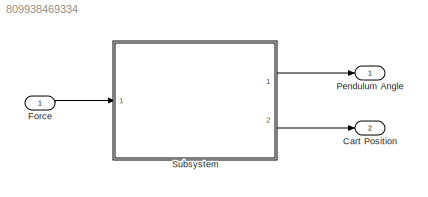
MODEL slx_809938469334
KIND model
CONFIG AbsTol = auto
CONFIG FixedStep = auto
CONFIG MaxStep = auto
CONFIG MinStep = auto
CONFIG RelTol = 1e-3
CONFIG SampleTimeConstraint = Unconstrained
CONFIG Solver = VariableStepAuto
CONFIG SolverMode = Auto
CONFIG SolverName = VariableStepAuto
CONFIG StartTime = 0.0
CONFIG StopTime = 10.0
BLOCK [Outport] Cart Position
  IconDisplay = Port number
  Port = 2
BLOCK [Inport] Force
  IconDisplay = Port number
BLOCK [Outport] Pendulum Angle
  IconDisplay = Port number
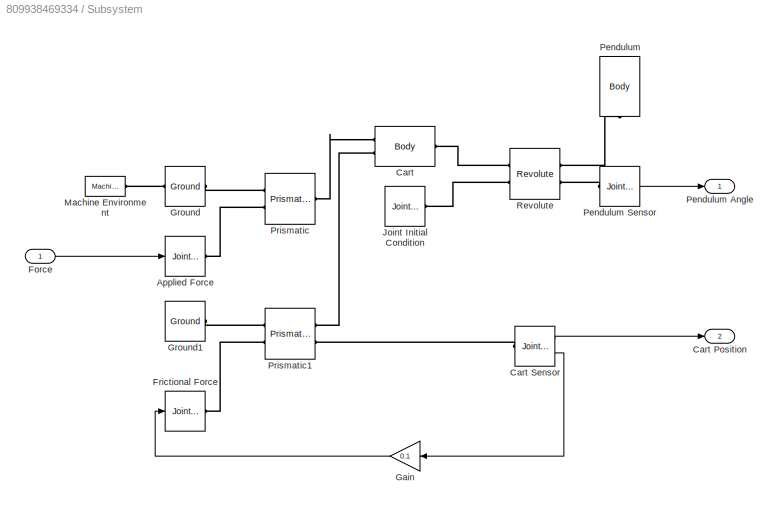
BLOCK [SubSystem] Subsystem
  Ports = [1, 2]
  RequestExecContextInheritance = off
  Variant = off
BLOCK [Reference] Subsystem/Applied Force  REF=mblibv1/Sensors & 
Actuators/Joint Actuator
  Ports = [1, 0, 0, 0, 0, 0, 1]
  SourceBlock = mblibv1/Sensors & \nActuators/Joint Actuator
  SourceType = Joint Actuator
BLOCK [Reference] Subsystem/Cart  REF=mblibv1/Bodies/Body
  Ports = [0, 0, 0, 0, 0, 2, 1]
  SourceBlock = mblibv1/Bodies/Body
  SourceType = Body
BLOCK [Outport] Subsystem/Cart Position
  IconDisplay = Port number
  Port = 2
BLOCK [Reference] Subsystem/Cart Sensor  REF=mblibv1/Sensors & 
Actuators/Joint Sensor
  Ports = [0, 2, 0, 0, 0, 1]
  SourceBlock = mblibv1/Sensors & \nActuators/Joint Sensor
  SourceType = Joint Sensor
BLOCK [Inport] Subsystem/Force
  IconDisplay = Port number
BLOCK [Reference] Subsystem/Frictional Force  REF=mblibv1/Sensors & 
Actuators/Joint Actuator
  Ports = [1, 0, 0, 0, 0, 0, 1]
  SourceBlock = mblibv1/Sensors & \nActuators/Joint Actuator
  SourceType = Joint Actuator
BLOCK [Gain] Subsystem/Gain
  Gain = 0.1
  OutDataTypeStr = Inherit: Inherit via internal rule
  ParamDataTypeStr = Inherit: Inherit via internal rule
  SaturateOnIntegerOverflow = off
BLOCK [Reference] Subsystem/Ground  REF=mblibv1/Bodies/Ground
  Ports = [0, 0, 0, 0, 0, 1, 1]
  SourceBlock = mblibv1/Bodies/Ground
  SourceType = Ground
  UserDataPersistent = on
BLOCK [Reference] Subsystem/Ground1  REF=mblibv1/Bodies/Ground
  Ports = [0, 0, 0, 0, 0, 0, 1]
  SourceBlock = mblibv1/Bodies/Ground
  SourceType = Ground
  UserDataPersistent = on
BLOCK [Reference] Subsystem/Joint Initial Condition  REF=mblibv1/Sensors & 
Actuators/Joint Initial Condition
  Ports = [0, 0, 0, 0, 0, 0, 1]
  SourceBlock = mblibv1/Sensors & \nActuators/Joint Initial Condition
  SourceType = Joint Initial Condition
BLOCK [Reference] Subsystem/Machine Environment  REF=mblibv1/Bodies/Machine
Environment
  Ports = [0, 0, 0, 0, 0, 0, 1]
  SourceBlock = mblibv1/Bodies/Machine\nEnvironment
  SourceType = Machine Environment
BLOCK [Reference] Subsystem/Pendulum  REF=mblibv1/Bodies/Body
  Ports = [0, 0, 0, 0, 0, 1]
  SourceBlock = mblibv1/Bodies/Body
  SourceType = Body
BLOCK [Outport] Subsystem/Pendulum Angle
  IconDisplay = Port number
BLOCK [Reference] Subsystem/Pendulum Sensor  REF=mblibv1/Sensors & 
Actuators/Joint Sensor
  Ports = [0, 1, 0, 0, 0, 1]
  SourceBlock = mblibv1/Sensors & \nActuators/Joint Sensor
  SourceType = Joint Sensor
BLOCK [Reference] Subsystem/Prismatic  REF=mblibv1/Joints/Prismatic
  Ports = [0, 0, 0, 0, 0, 2, 1]
  SourceBlock = mblibv1/Joints/Prismatic
  SourceType = Prismatic
BLOCK [Reference] Subsystem/Prismatic1  REF=mblibv1/Joints/Prismatic
  Ports = [0, 0, 0, 0, 0, 2, 2]
  SourceBlock = mblibv1/Joints/Prismatic
  SourceType = Prismatic
BLOCK [Reference] Subsystem/Revolute  REF=mblibv1/Joints/Revolute
  Ports = [0, 0, 0, 0, 0, 2, 2]
  SourceBlock = mblibv1/Joints/Revolute
  SourceType = Revolute
LINE Force:1 -> Subsystem:1
LINE Subsystem/Cart Sensor:1 -> Subsystem/Cart Position:1
LINE Subsystem/Cart Sensor:2 -> Subsystem/Gain:1
LINE Subsystem/Force:1 -> Subsystem/Applied Force:1
LINE Subsystem/Gain:1 -> Subsystem/Frictional Force:1
LINE Subsystem/Pendulum Sensor:1 -> Subsystem/Pendulum Angle:1
LINE Subsystem:1 -> Pendulum Angle:1
LINE Subsystem:2 -> Cart Position:1
PLINE Subsystem/Applied Force:RConn1 -- Subsystem/Prismatic:LConn2
PLINE Subsystem/Cart Sensor:LConn1 -- Subsystem/Prismatic1:RConn2
PLINE Subsystem/Cart:LConn1 -- Subsystem/Prismatic:RConn1
PLINE Subsystem/Cart:LConn2 -- Subsystem/Prismatic1:RConn1
PLINE Subsystem/Cart:RConn1 -- Subsystem/Revolute:LConn1
PLINE Subsystem/Frictional Force:RConn1 -- Subsystem/Prismatic1:LConn2
PLINE Subsystem/Ground1:RConn1 -- Subsystem/Prismatic1:LConn1
PLINE Subsystem/Ground:LConn1 -- Subsystem/Machine Environment:RConn1
PLINE Subsystem/Ground:RConn1 -- Subsystem/Prismatic:LConn1
PLINE Subsystem/Joint Initial Condition:RConn1 -- Subsystem/Revolute:LConn2
PLINE Subsystem/Pendulum Sensor:LConn1 -- Subsystem/Revolute:RConn2
PLINE Subsystem/Pendulum:LConn1 -- Subsystem/Revolute:RConn1
